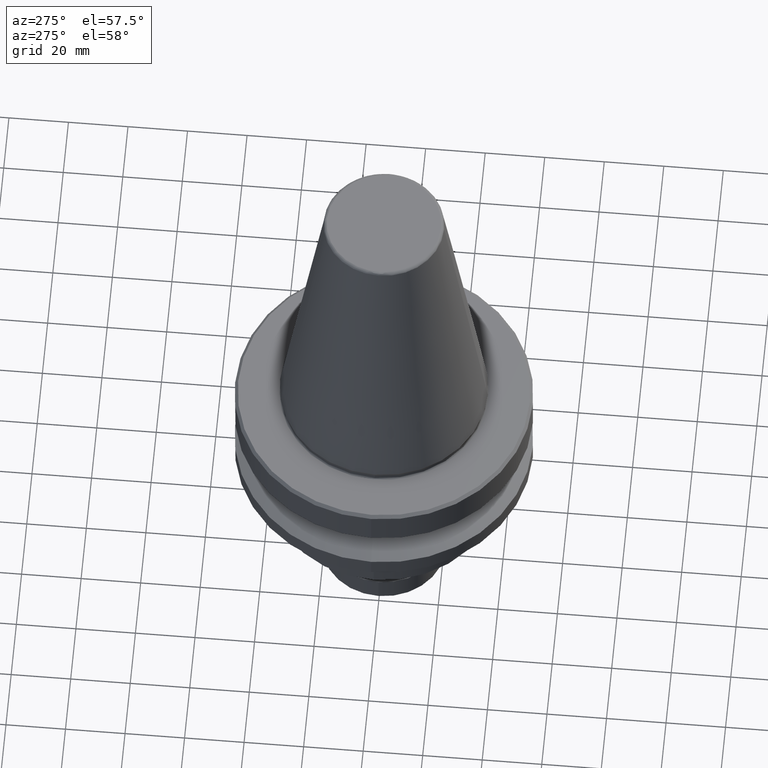
[diagram: clean part render]
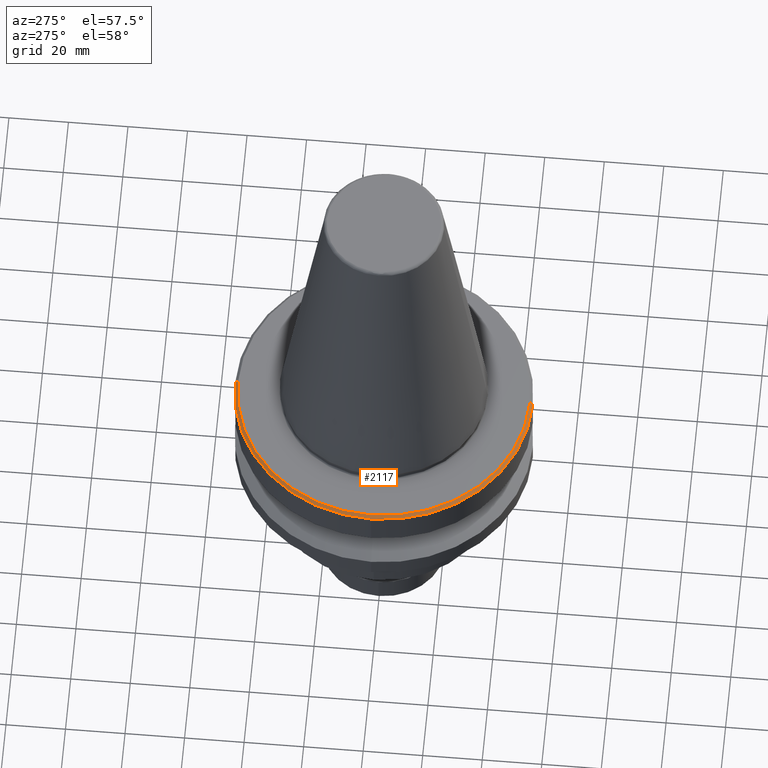
[diagram: same view with one face highlighted and labeled with its STEP entity id]
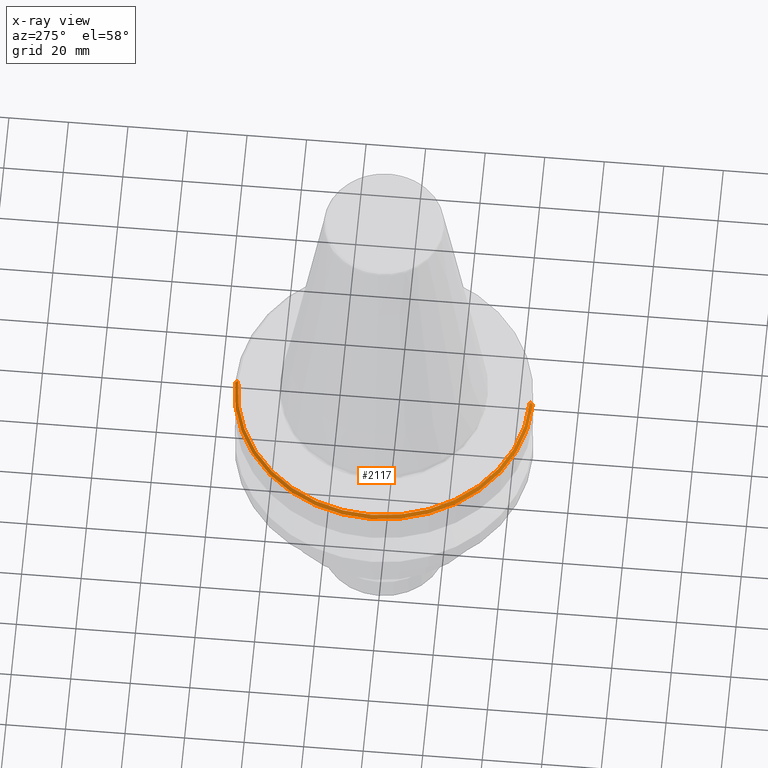
[diagram: x-ray of the same camera — body ghosted, the highlighted face saturated]
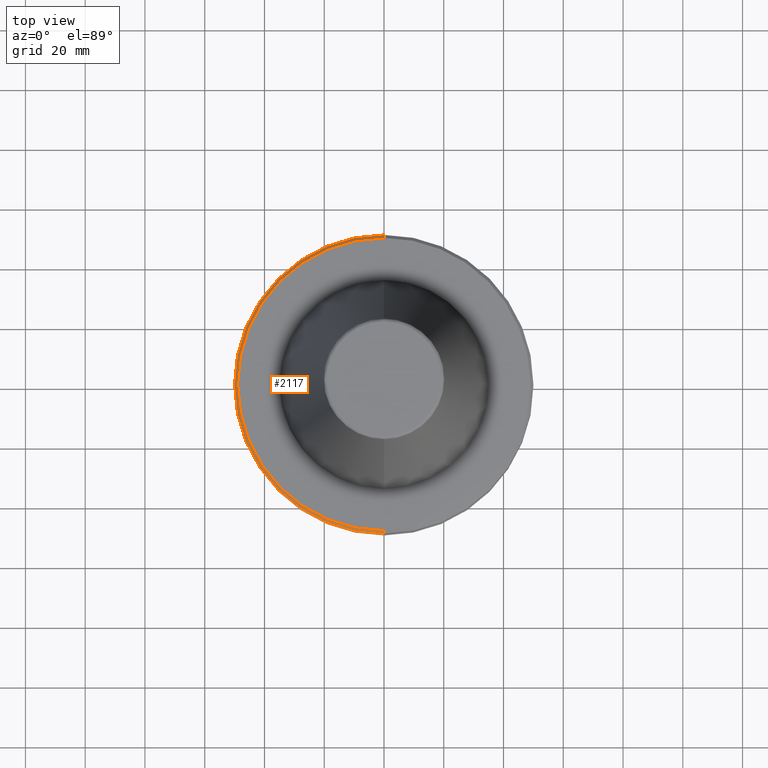
[diagram: same view with one face highlighted and labeled with its STEP entity id]
A machine part, auxiliary view. The second image highlights one B-rep face of the part: STEP entity #2117.
The next image is the same camera in x-ray: the body ghosted, the highlighted face saturated — about 0% of this face is hidden behind the body in this view.
A second angle (top view) of the same face is appended — the face is thin or edge-on in the first view.
In plain terms, the highlighted conical surface has half-angle 45 deg.
Its self-contained STEP definition (entity closure, byte-faithful):
#1 = AXIS2_PLACEMENT_3D ( 'NONE', #2013, #1998, #2043 ) ;
#81 = EDGE_CURVE ( 'NONE', #2513, #1628, #1443, .T. ) ;
#89 = CARTESIAN_POINT ( 'NONE',  ( 0.0000000000000000000, 50.00000000000000000, -3.999999999999989800 ) ) ;
#156 = AXIS2_PLACEMENT_3D ( 'NONE', #1083, #1080, #1076 ) ;
#183 = LINE ( 'NONE', #689, #2363 ) ;
#273 = CARTESIAN_POINT ( 'NONE',  ( 6.062001655779398500E-015, -49.00000000000000000, -2.999999999999989300 ) ) ;
#440 = ORIENTED_EDGE ( 'NONE', *, *, #81, .T. ) ;
#443 = CARTESIAN_POINT ( 'NONE',  ( 0.0000000000000000000, 49.00000000000000000, -2.999999999999988500 ) ) ;
#474 = CARTESIAN_POINT ( 'NONE',  ( 6.123233995736766900E-015, -50.00000000000000700, -3.999999999999996400 ) ) ;
#506 = DIRECTION ( 'NONE',  ( 8.659560562354937800E-017, -0.7071067811865479100, -0.7071067811865472400 ) ) ;
#507 = EDGE_CURVE ( 'NONE', #1658, #1041, #1793, .T. ) ;
#649 = VECTOR ( 'NONE', #506, 999.9999999999998900 ) ;
#689 = CARTESIAN_POINT ( 'NONE',  ( 0.0000000000000000000, 50.00000000000000700, -3.999999999999994700 ) ) ;
#696 = DIRECTION ( 'NONE',  ( 0.0000000000000000000, 0.7071067811865479100, -0.7071067811865472400 ) ) ;
#778 = EDGE_CURVE ( 'NONE', #1041, #1226, #183, .T. ) ;
#808 = CIRCLE ( 'NONE', #156, 50.00000000000000000 ) ;
#832 = ORIENTED_EDGE ( 'NONE', *, *, #507, .T. ) ;
#961 = EDGE_CURVE ( 'NONE', #1658, #1628, #2638, .T. ) ;
#970 = AXIS2_PLACEMENT_3D ( 'NONE', #1705, #1702, #1778 ) ;
#993 = DIRECTION ( 'NONE',  ( 0.0000000000000000000, 1.000000000000000000, 8.850629979473505400E-018 ) ) ;
#994 = DIRECTION ( 'NONE',  ( 0.0000000000000000000, 8.673617379884035500E-018, -1.000000000000000000 ) ) ;
#999 = CARTESIAN_POINT ( 'NONE',  ( 0.0000000000000000000, -8.673617379884097100E-018, -2.999999999999988900 ) ) ;
#1041 = VERTEX_POINT ( 'NONE', #443 ) ;
#1076 = DIRECTION ( 'NONE',  ( -1.000000000000000000, -8.881784197001252300E-016, -3.469446951953614200E-017 ) ) ;
#1080 = DIRECTION ( 'NONE',  ( -0.0000000000000000000, -0.0000000000000000000, 1.000000000000000000 ) ) ;
#1083 = CARTESIAN_POINT ( 'NONE',  ( 0.0000000000000000000, 0.0000000000000000000, -3.999999999999989800 ) ) ;
#1226 = VERTEX_POINT ( 'NONE', #89 ) ;
#1332 = AXIS2_PLACEMENT_3D ( 'NONE', #999, #994, #993 ) ;
#1424 = CARTESIAN_POINT ( 'NONE',  ( -50.00000000000000000, 6.123233995736766100E-015, -3.999999999999989800 ) ) ;
#1443 = CIRCLE ( 'NONE', #970, 50.00000000000000000 ) ;
#1468 = ORIENTED_EDGE ( 'NONE', *, *, #778, .T. ) ;
#1628 = VERTEX_POINT ( 'NONE', #1690 ) ;
#1658 = VERTEX_POINT ( 'NONE', #273 ) ;
#1690 = CARTESIAN_POINT ( 'NONE',  ( 6.123233995736766100E-015, -50.00000000000000000, -3.999999999999989800 ) ) ;
#1702 = DIRECTION ( 'NONE',  ( -0.0000000000000000000, -0.0000000000000000000, 1.000000000000000000 ) ) ;
#1705 = CARTESIAN_POINT ( 'NONE',  ( 0.0000000000000000000, 0.0000000000000000000, -3.999999999999989800 ) ) ;
#1778 = DIRECTION ( 'NONE',  ( -1.000000000000000000, 0.0000000000000000000, -3.469446951953614200E-017 ) ) ;
#1793 = CIRCLE ( 'NONE', #1332, 49.00000000000000000 ) ;
#1808 = FACE_OUTER_BOUND ( 'NONE', #1829, .T. ) ;
#1829 = EDGE_LOOP ( 'NONE', ( #2643, #832, #1468, #2116, #440 ) ) ;
#1998 = DIRECTION ( 'NONE',  ( 0.0000000000000000000, 8.673617379884035500E-018, -1.000000000000000000 ) ) ;
#2013 = CARTESIAN_POINT ( 'NONE',  ( 0.0000000000000000000, 0.0000000000000000000, -3.999999999999995600 ) ) ;
#2043 = DIRECTION ( 'NONE',  ( 0.0000000000000000000, 1.000000000000000000, 1.734723475976806800E-017 ) ) ;
#2116 = ORIENTED_EDGE ( 'NONE', *, *, #2596, .T. ) ;
#2117 = ADVANCED_FACE ( 'NONE', ( #1808 ), #2380, .T. ) ;
#2363 = VECTOR ( 'NONE', #696, 999.9999999999998900 ) ;
#2380 = CONICAL_SURFACE ( 'NONE', #1, 50.00000000000000700, 0.7853981633974487200 ) ;
#2513 = VERTEX_POINT ( 'NONE', #1424 ) ;
#2596 = EDGE_CURVE ( 'NONE', #1226, #2513, #808, .T. ) ;
#2638 = LINE ( 'NONE', #474, #649 ) ;
#2643 = ORIENTED_EDGE ( 'NONE', *, *, #961, .F. ) ;